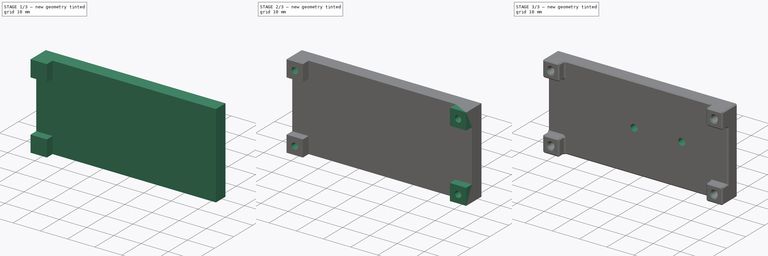
[diagram: build sequence overview — one tinted view per stage of 3, left to right]
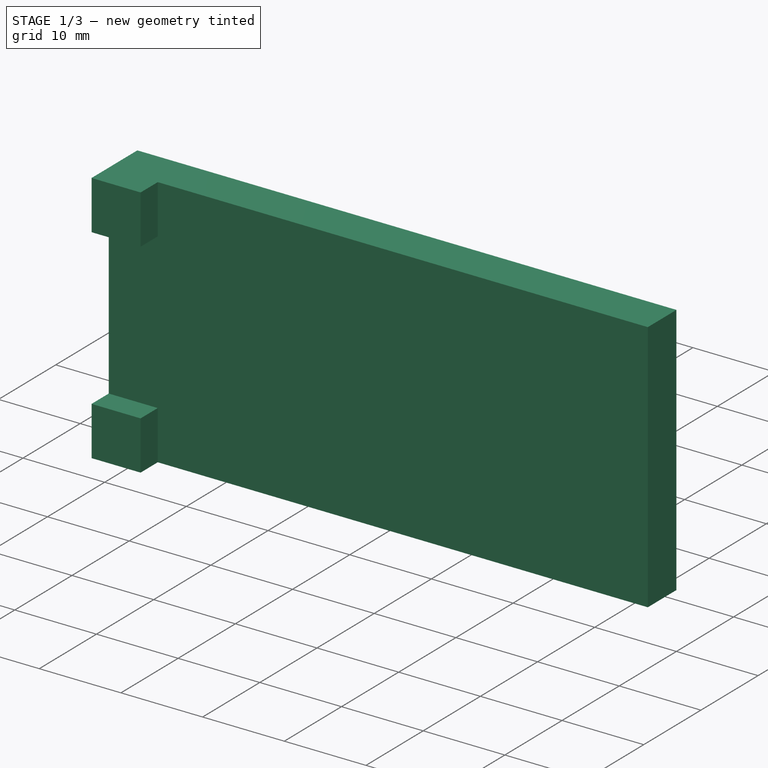
[diagram: stage 1 of 3 — iso view after this stage's code; geometry added in this stage tinted green]
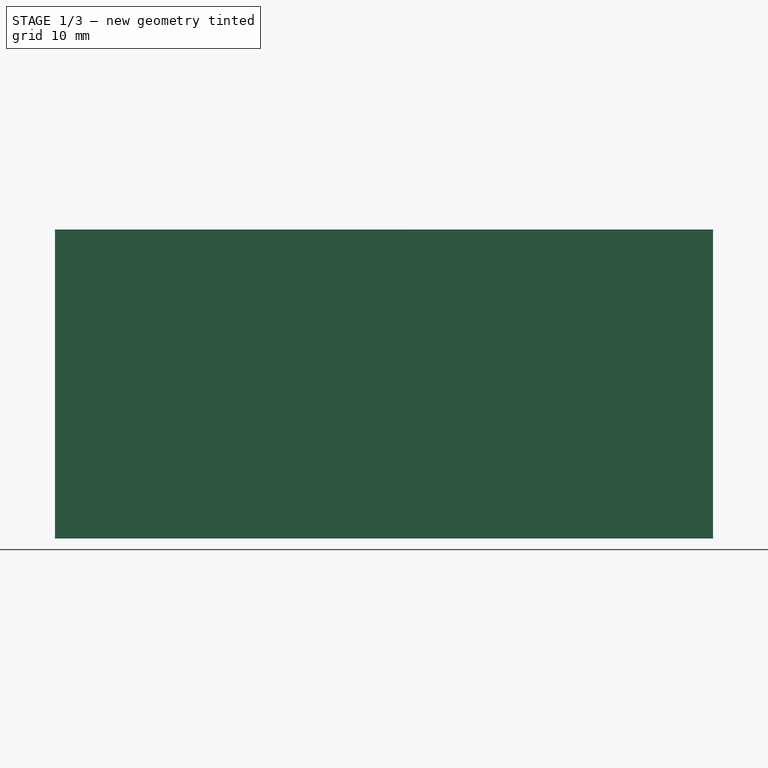
[diagram: stage 1 of 3 — front view after this stage's code; geometry added in this stage tinted green]
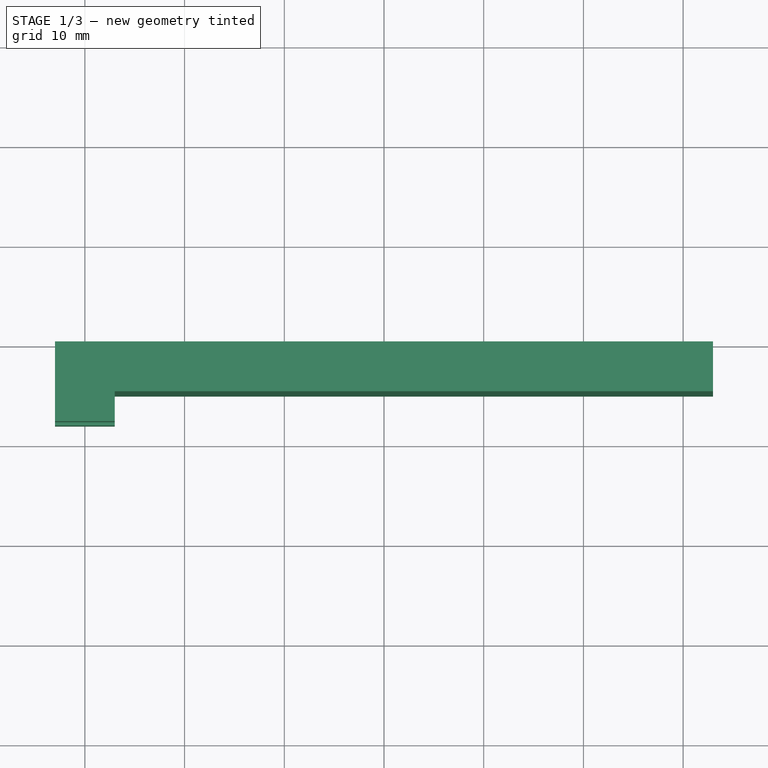
[diagram: stage 1 of 3 — top view after this stage's code; geometry added in this stage tinted green]
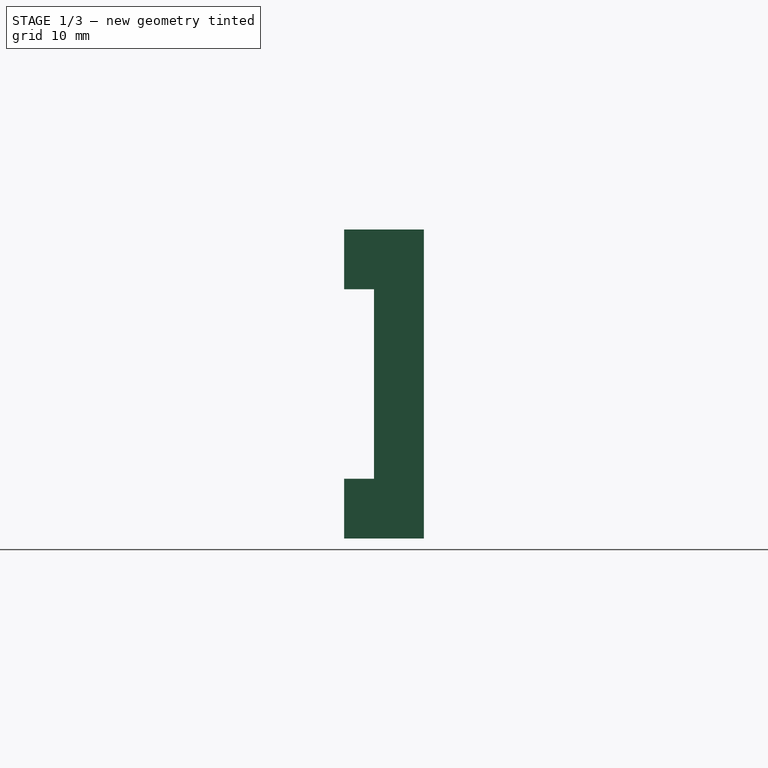
[diagram: stage 1 of 3 — right view after this stage's code; geometry added in this stage tinted green]
FCSTD DOCUMENT  (FreeCAD 1.1R20260414 (Git shallow))
Label: 01_240v-12v_converter_holder
License: All rights reserved
LicenseURL: https://en.wikipedia.org/wiki/All_rights_reserved
objects: Sketcher::SketchObject×4, PartDesign::Pad×2, PartDesign::Pocket×2, App::Point×1, PartDesign::Mirrored×1, PartDesign::Chamfer×1, PartDesign::Body×1
note: 26 computed .brp shape members not serialized (recipe doc carries the construction recipe); baked Part::Feature solids carry a one-line shape summary decoded from their .brp

FEATURE [App::Point] Origin001
  Role = Origin
FEATURE [Sketcher::SketchObject] Sketch
  ArcFitTolerance = 1e-06
  AttachmentSupport = -> [Origin]
  ExternalTypes = [0]
  FullyConstrained = true
  MakeInternals = false
  MapMode = 5
  Placement = pos=(0,0,0) rot=(1,0,0;1.5708rad)
  _ExternalGeoVersion = 1
  sketch-geometry (5):
    g0: LineSegment StartX=-33 StartY=15.5 StartZ=0 EndX=-33 EndY=-15.5 EndZ=0
    g1: LineSegment StartX=-33 StartY=-15.5 StartZ=0 EndX=33 EndY=-15.5 EndZ=0
    g2: LineSegment StartX=33 StartY=-15.5 StartZ=0 EndX=33 EndY=15.5 EndZ=0
    g3: LineSegment StartX=33 StartY=15.5 StartZ=0 EndX=-33 EndY=15.5 EndZ=0
    g4: LineSegment [constr] StartX=-33 StartY=15.5 StartZ=0 EndX=33 EndY=-15.5 EndZ=0
  constraints (13):
    c: Coincident(g0,g1)
    c: Coincident(g1,g2)
    c: Coincident(g2,g3)
    c: Coincident(g3,g0)
    c: Vertical(g0)
    c: Vertical(g2)
    c: Horizontal(g1)
    c: Horizontal(g3)
    c: Coincident(g4,g0)
    c: Coincident(g4,g1)
    c: Symmetric(g0,g1,g-1)
    c: DistanceX(g3,g3) = 66
    c: DistanceY(g0,g0) = 31
FEATURE [PartDesign::Pad] Pad
  Direction = (0,-1,0)
  Length = 5
  Length2 = 10
  Profile = -> Sketch
  ReferenceAxis = -> Sketch [N_Axis]
  Refine = true
  SideType = 0
  Suppressed = false
  Type = 0
  Type2 = 0
FEATURE [Sketcher::SketchObject] Sketch001
  ArcFitTolerance = 1e-06
  AttachmentSupport = -> [Pad]
  ExternalGeometry = -> [Pad]
  ExternalTypes = [0,0,0,0]
  FullyConstrained = true
  MakeInternals = false
  MapMode = 5
  Placement = pos=(0,-5,0) rot=(1,0,0;1.5708rad)
  _ExternalGeoVersion = 1
  sketch-geometry (8):
    g0: LineSegment StartX=-33 StartY=15.5 StartZ=0 EndX=-33 EndY=9.5 EndZ=0
    g1: LineSegment StartX=-33 StartY=9.5 StartZ=0 EndX=-27 EndY=9.5 EndZ=0
    g2: LineSegment StartX=-27 StartY=9.5 StartZ=0 EndX=-27 EndY=15.5 EndZ=0
    g3: LineSegment StartX=-27 StartY=15.5 StartZ=0 EndX=-33 EndY=15.5 EndZ=0
    g4: LineSegment StartX=-33 StartY=-15.5 StartZ=0 EndX=-27 EndY=-15.5 EndZ=0
    g5: LineSegment StartX=-27 StartY=-15.5 StartZ=0 EndX=-27 EndY=-9.5 EndZ=0
    g6: LineSegment StartX=-27 StartY=-9.5 StartZ=0 EndX=-33 EndY=-9.5 EndZ=0
    g7: LineSegment StartX=-33 StartY=-9.5 StartZ=0 EndX=-33 EndY=-15.5 EndZ=0
  constraints (22):
    c: Coincident(g0,g1)
    c: Coincident(g1,g2)
    c: Coincident(g2,g3)
    c: Coincident(g3,g0)
    c: Vertical(g0)
    c: Vertical(g2)
    c: Horizontal(g1)
    c: Horizontal(g3)
    c: Coincident(g0,g-6)
    c: DistanceY(g0,g0) = 6
    c: Equal(g0,g3)
    c: Coincident(g4,g5)
    c: Coincident(g5,g6)
    c: Coincident(g6,g7)
    c: Coincident(g7,g4)
    c: Horizontal(g4)
    c: Horizontal(g6)
    c: Vertical(g5)
    c: Vertical(g7)
    c: Coincident(g4,g-6)
    c: Equal(g0,g7)
    c: Equal(g0,g6)
FEATURE [PartDesign::Pad] Pad001
  BaseFeature = -> Pad
  Direction = (0,-1,0)
  Length = 3
  Length2 = 10
  Profile = -> Sketch001
  ReferenceAxis = -> Sketch001 [N_Axis]
  Refine = true
  SideType = 0
  Suppressed = false
  Type = 0
  Type2 = 0
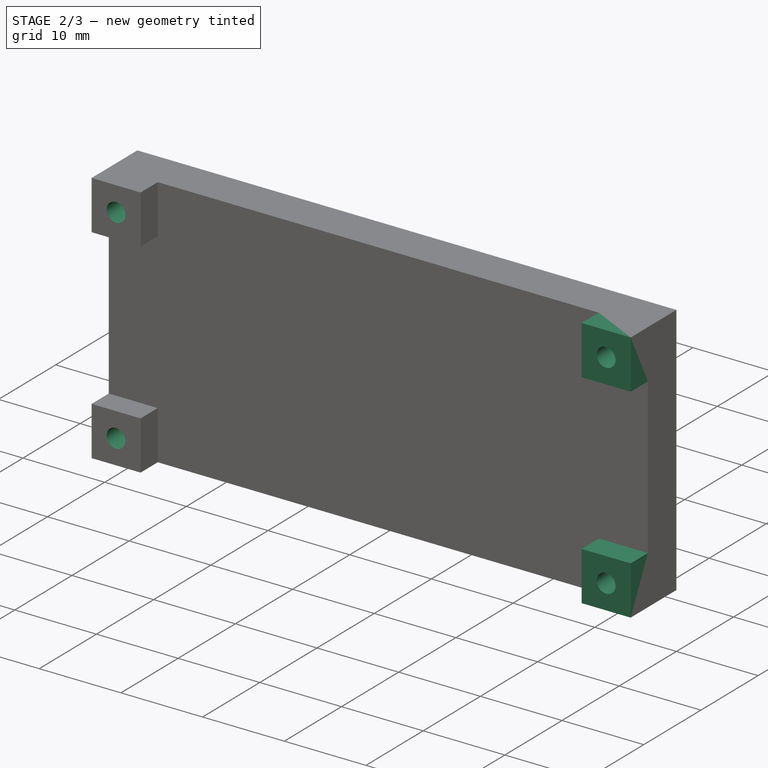
[diagram: stage 2 of 3 — iso view after this stage's code; geometry added in this stage tinted green]
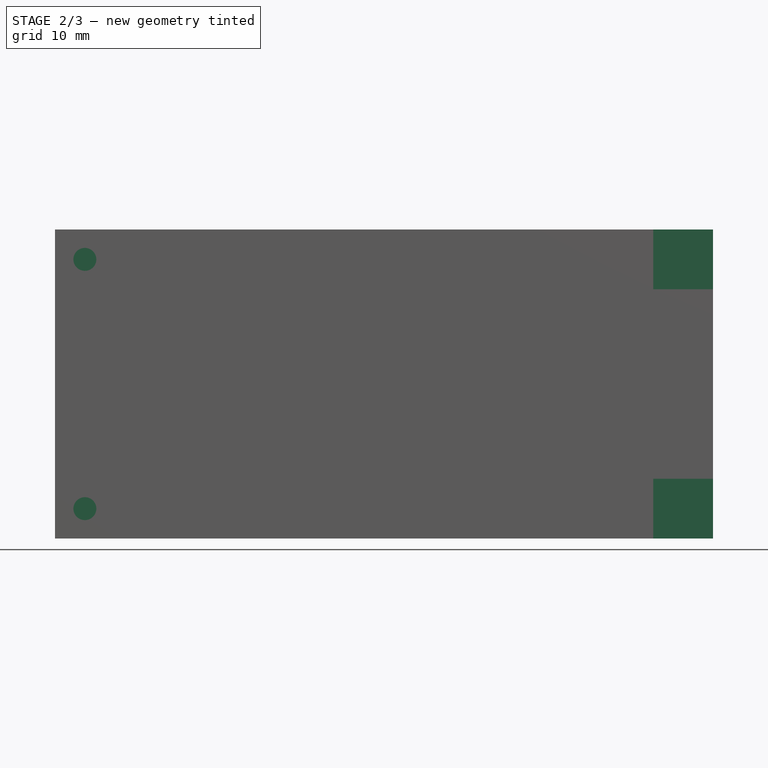
[diagram: stage 2 of 3 — front view after this stage's code; geometry added in this stage tinted green]
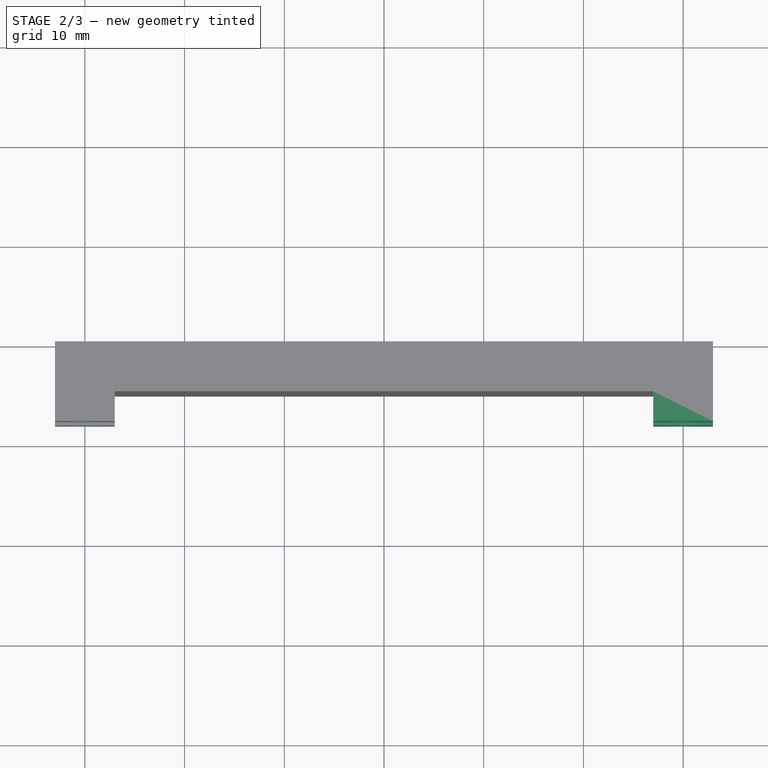
[diagram: stage 2 of 3 — top view after this stage's code; geometry added in this stage tinted green]
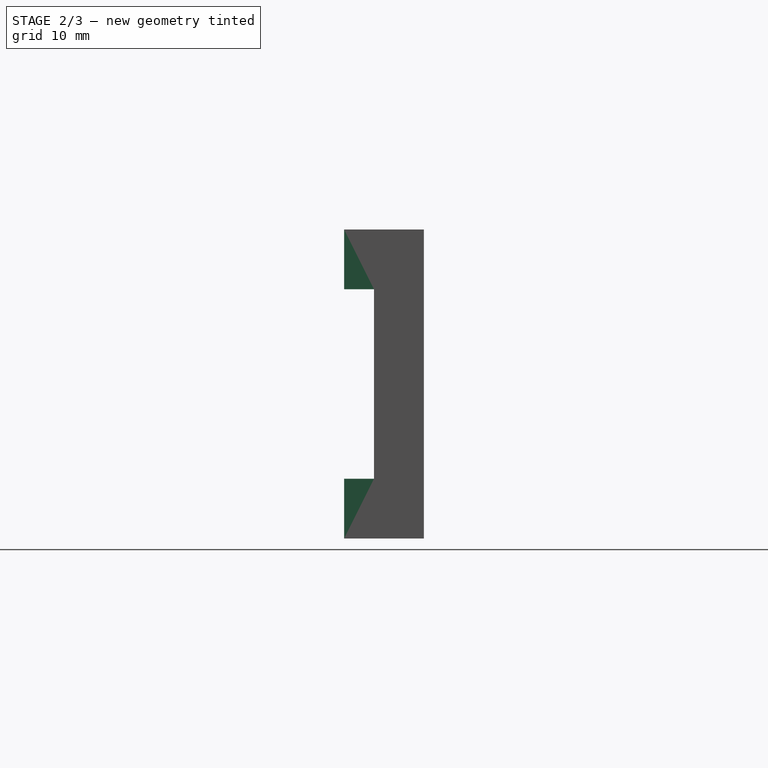
[diagram: stage 2 of 3 — right view after this stage's code; geometry added in this stage tinted green]
FEATURE [Sketcher::SketchObject] Sketch002
  ArcFitTolerance = 1e-06
  AttachmentSupport = -> [Pad001]
  ExternalGeometry = -> [Pad001]
  ExternalTypes = [0,0,0,0,0,0,0,0]
  FullyConstrained = true
  MakeInternals = false
  MapMode = 5
  Placement = pos=(0,-8,0) rot=(1,0,0;1.5708rad)
  _ExternalGeoVersion = 1
  sketch-geometry (6):
    g0: LineSegment [constr] StartX=-33 StartY=15.5 StartZ=0 EndX=-27 EndY=9.5 EndZ=0
    g1: LineSegment [constr] StartX=-33 StartY=9.5 StartZ=0 EndX=-27 EndY=15.5 EndZ=0
    g2: Circle CenterX=-30 CenterY=12.5 CenterZ=0 NormalX=0 NormalY=0 NormalZ=1 AngleXU=0 Radius=1.15
    g3: LineSegment [constr] StartX=-33 StartY=-9.5 StartZ=0 EndX=-27 EndY=-15.5 EndZ=0
    g4: LineSegment [constr] StartX=-33 StartY=-15.5 StartZ=0 EndX=-27 EndY=-9.5 EndZ=0
    g5: Circle CenterX=-30 CenterY=-12.5 CenterZ=0 NormalX=0 NormalY=0 NormalZ=1 AngleXU=0 Radius=1.15
  constraints (12):
    c: Coincident(g0,g-6)
    c: Coincident(g0,g-5)
    c: Coincident(g1,g-6)
    c: Coincident(g1,g-4)
    c: Symmetric(g0,g0,g2)
    c: Diameter(g2) = 2.3
    c: Coincident(g3,g-10)
    c: Coincident(g3,g-9)
    c: Coincident(g4,g-10)
    c: Coincident(g4,g-8)
    c: Symmetric(g3,g3,g5)
    c: Equal(g2,g5)
FEATURE [PartDesign::Pocket] Pocket
  BaseFeature = -> Pad001
  Direction = (0,1,-2e-16)
  Length = 5
  Length2 = 5
  Profile = -> Sketch002
  ReferenceAxis = -> Sketch002 [N_Axis]
  Refine = true
  SideType = 0
  Suppressed = false
  Type = 0
  Type2 = 0
FEATURE [PartDesign::Mirrored] Mirrored
  BaseFeature = -> Pocket
  MirrorPlane = -> Sketch001 [V_Axis]
  Originals = -> [Pad001,Pocket]
  Refine = true
  Suppressed = false
  TransformMode = 0
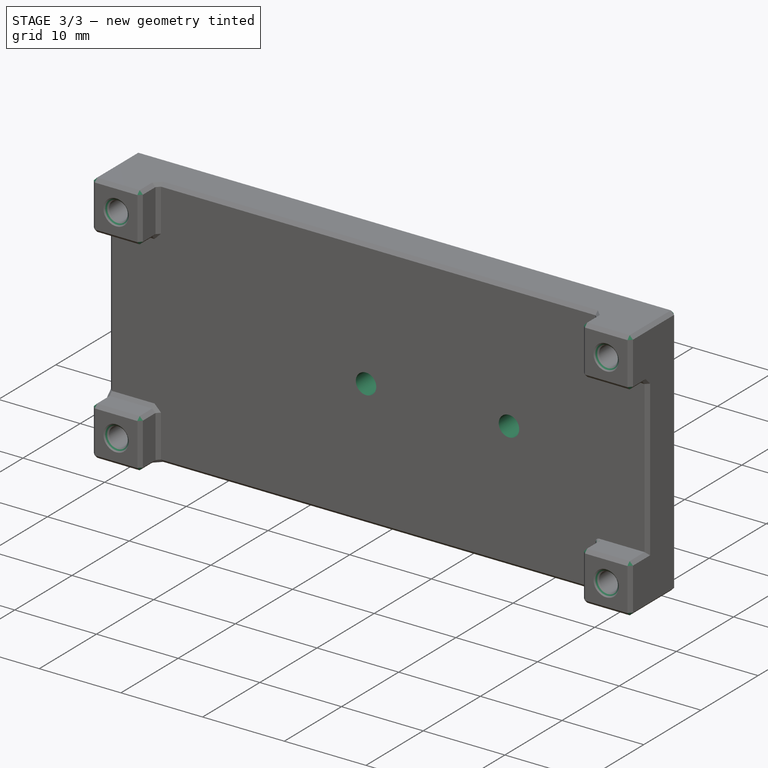
[diagram: stage 3 of 3 — iso view after this stage's code; geometry added in this stage tinted green]
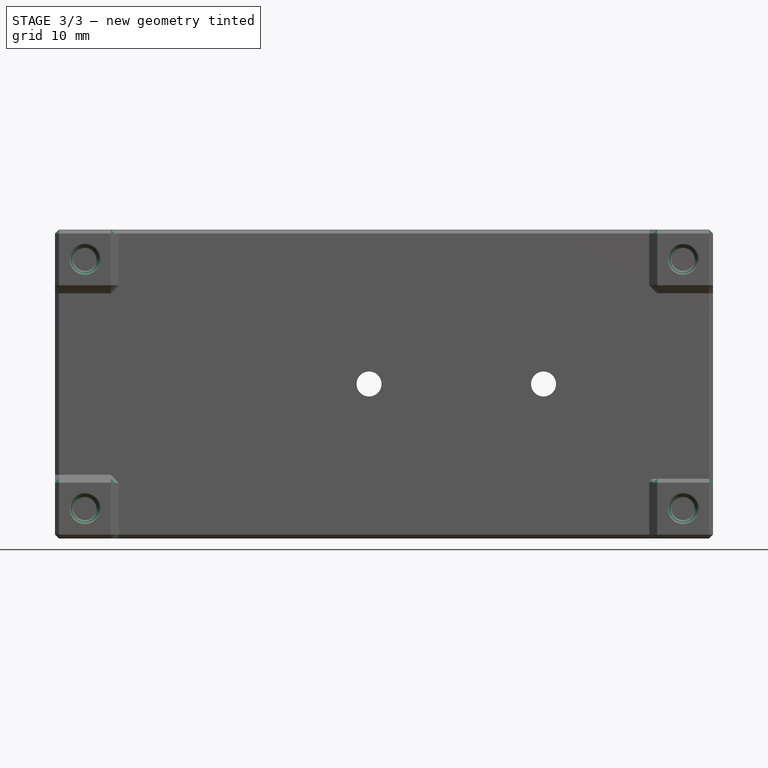
[diagram: stage 3 of 3 — front view after this stage's code; geometry added in this stage tinted green]
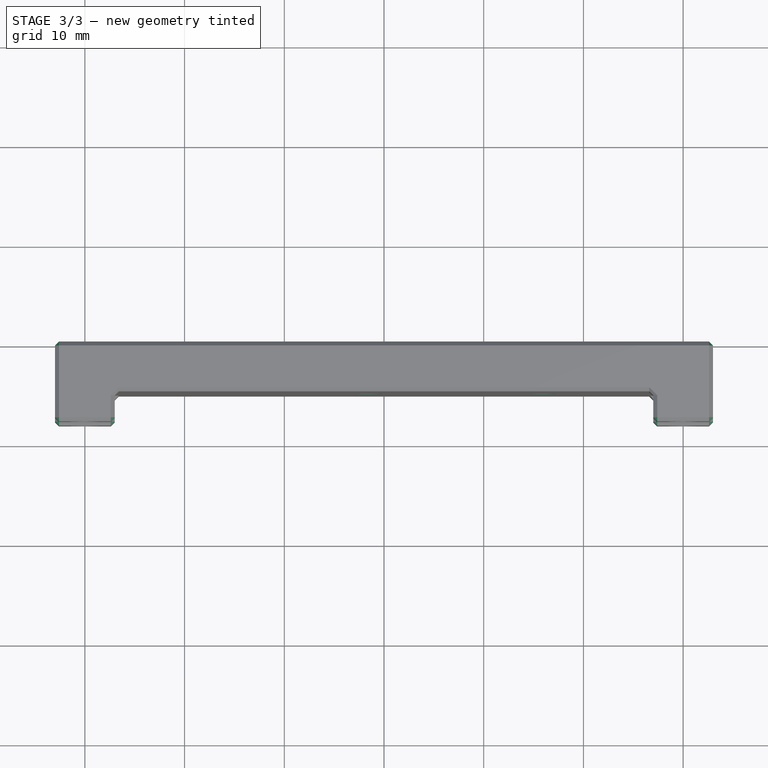
[diagram: stage 3 of 3 — top view after this stage's code; geometry added in this stage tinted green]
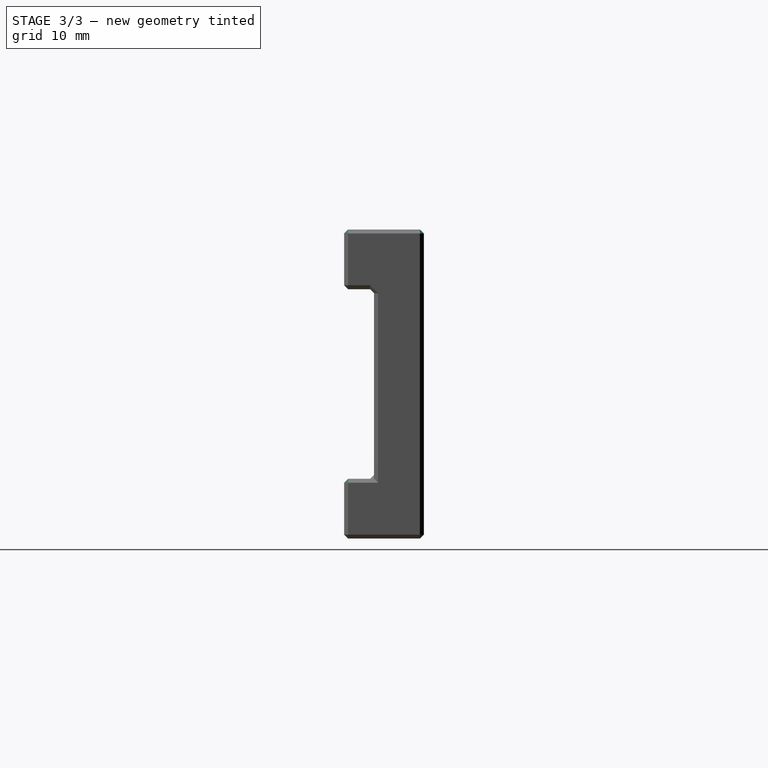
[diagram: stage 3 of 3 — right view after this stage's code; geometry added in this stage tinted green]
FEATURE [Sketcher::SketchObject] Sketch003
  ArcFitTolerance = 1e-06
  AttachmentSupport = -> [Mirrored]
  ExternalGeometry = -> [Mirrored]
  ExternalTypes = [0,0,0,0]
  FullyConstrained = true
  MakeInternals = false
  MapMode = 5
  Placement = pos=(0,0,0) rot=(0,0.707107,0.707107;3.14159rad)
  _ExternalGeoVersion = 1
  sketch-geometry (7):
    g0: LineSegment [constr] StartX=-30.25 StartY=9 StartZ=0 EndX=-30.25 EndY=-9 EndZ=0
    g1: LineSegment [constr] StartX=-30.25 StartY=-9 StartZ=0 EndX=30.25 EndY=-9 EndZ=0
    g2: LineSegment [constr] StartX=30.25 StartY=-9 StartZ=0 EndX=30.25 EndY=9 EndZ=0
    g3: LineSegment [constr] StartX=30.25 StartY=9 StartZ=0 EndX=-30.25 EndY=9 EndZ=0
    g4: LineSegment [constr] StartX=-30.25 StartY=9 StartZ=0 EndX=30.25 EndY=-9 EndZ=0
    g5: Circle CenterX=-16 CenterY=0 CenterZ=0 NormalX=0 NormalY=0 NormalZ=1 AngleXU=0 Radius=1.25
    g6: Circle CenterX=1.5 CenterY=0 CenterZ=0 NormalX=0 NormalY=0 NormalZ=1 AngleXU=0 Radius=1.25
  constraints (20):
    c: Coincident(g0,g1)
    c: Coincident(g1,g2)
    c: Coincident(g2,g3)
    c: Coincident(g3,g0)
    c: Vertical(g0)
    c: Vertical(g2)
    c: Horizontal(g1)
    c: Horizontal(g3)
    c: Coincident(g4,g0)
    c: Coincident(g4,g1)
    c: Symmetric(g0,g1,g-1)
    c: DistanceX(g3,g3) = 60.5
    c: Distance(g-6,g2) = 2.75
    c: DistanceY(g0,g0) = 18
    c: PointOnObject(g5,g-1)
    c: Diameter(g5) = 2.5
    c: PointOnObject(g6,g-1)
    c: Equal(g5,g6)
    c: DistanceX(g5,g6) = 17.5
    c: Distance(g6,g-6) = 31.5
FEATURE [PartDesign::Pocket] Pocket001
  BaseFeature = -> Mirrored
  Direction = (0,-1,2e-16)
  Length = 5
  Length2 = 5
  Profile = -> Sketch003
  ReferenceAxis = -> Sketch003 [N_Axis]
  Refine = true
  SideType = 0
  Suppressed = false
  Type = 1
  Type2 = 0
FEATURE [PartDesign::Chamfer] Chamfer
  Angle = 45
  Base = -> Pocket001 [Edge7,Edge25,Edge35,Edge36,Edge8,Edge9,Edge10,Edge1,Edge13,Edge12,Edge48,Edge11,Edge47,Edge49,Edge15,Edge50,Edge37,Edge23,Edge24,Edge22,Edge55,Edge44,Edge58,Face11,Edge45,Edge28,Edge27,Edge56,Edge57,Edge30,Edge21,Edge20,Edge3,Edge43,Edge18,Edge52,Edge19,Edge26,Edge54,Edge53,+13 more]
  BaseFeature = -> Pocket001
  ChamferType = 0
  FlipDirection = false
  Refine = true
  Size = 0.4
  Size2 = 1
  SupportTransform = false
  Suppressed = false
  UseAllEdges = false
FEATURE [PartDesign::Body] Body
  AllowCompound = true
  Group = -> [Sketch,Pad,Sketch001,Pad001,Sketch002,Pocket,Mirrored,Sketch003,Pocket001,Chamfer]
  Origin = -> Origin
  Tip = -> Chamfer
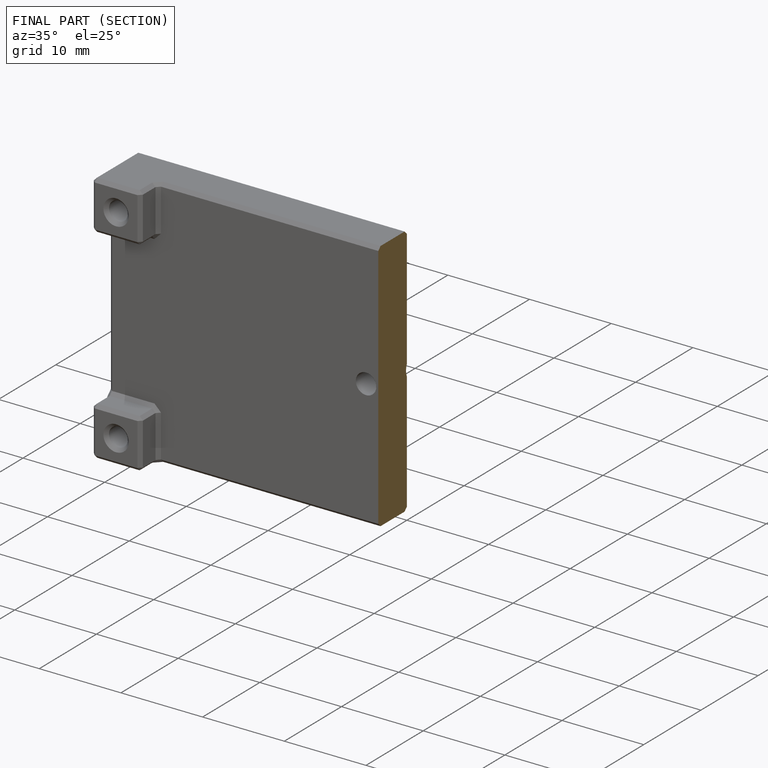
[diagram: finished part — half-section view (interior)]
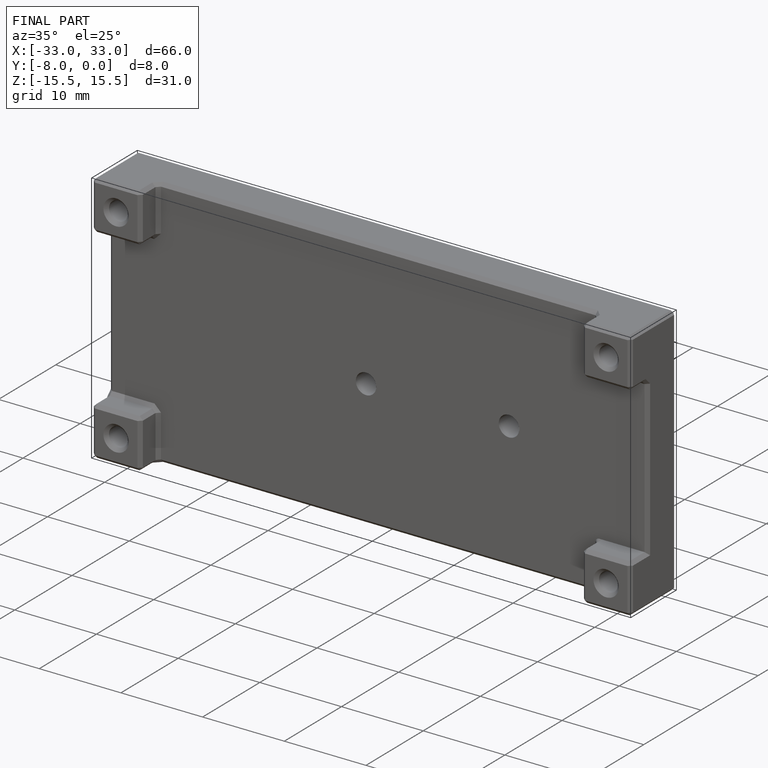
[diagram: finished part — iso view with bounding-box wireframe]
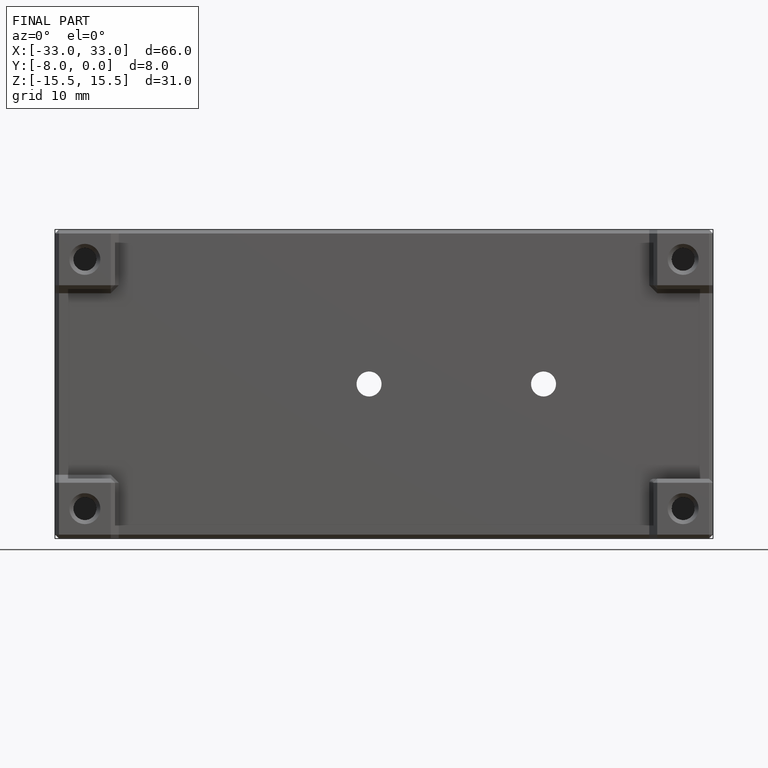
[diagram: finished part — front view with bounding-box wireframe]
